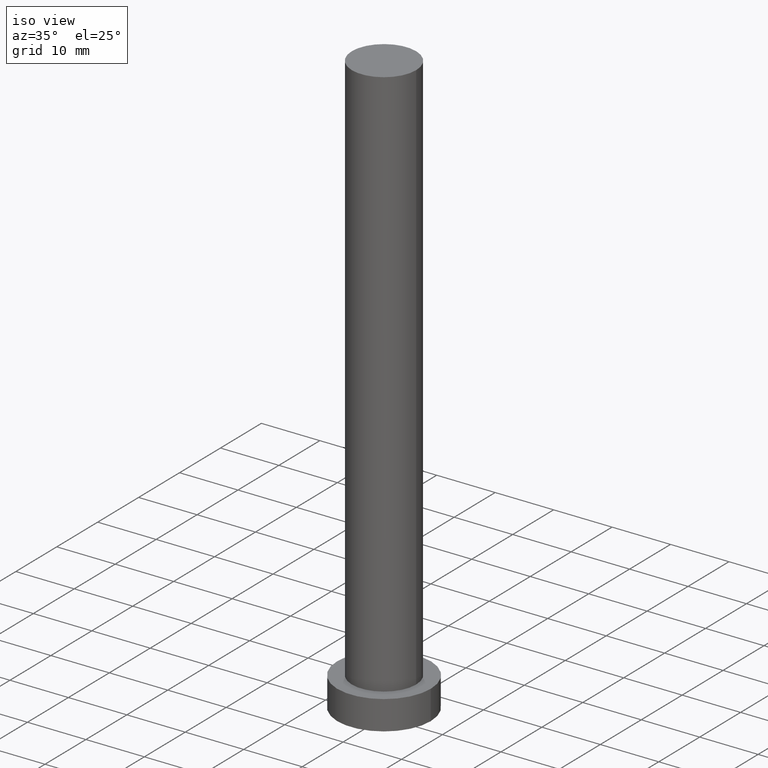
[diagram: clean part render]
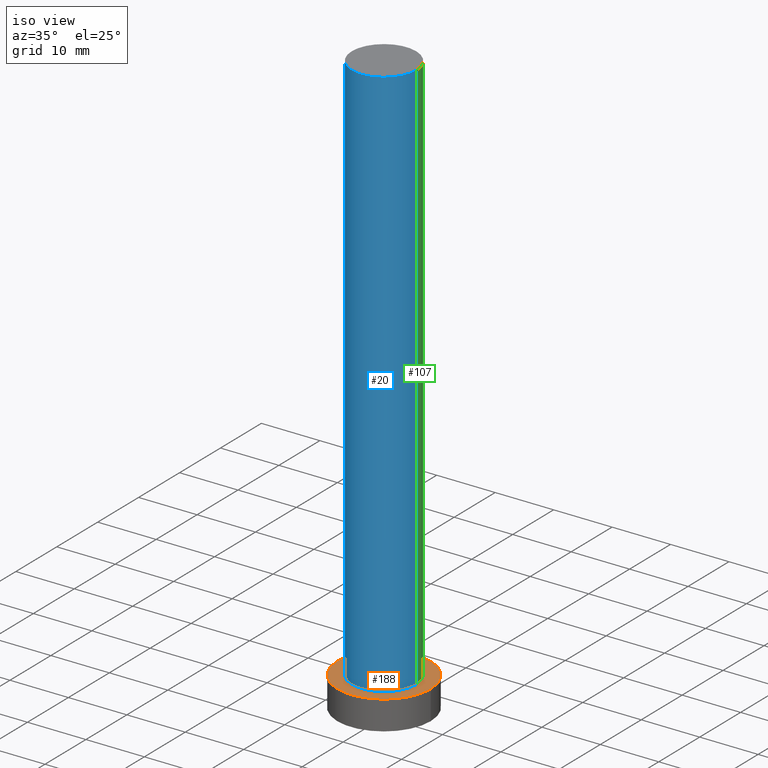
[diagram: same view with three faces highlighted in distinct colors, each labeled with its STEP entity id]
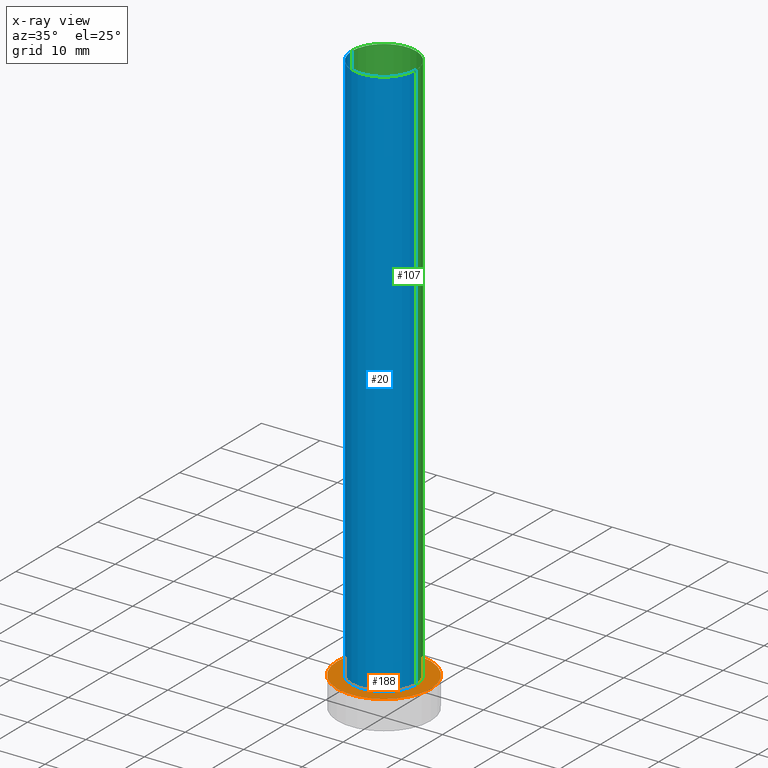
[diagram: x-ray of the same camera — body ghosted, the three highlighted faces saturated]
A machine part, iso view with three faces highlighted in distinct colors.
The next image is the same camera in x-ray (body ghosted, the three faces saturated) — at least one of them is partly hidden behind the body in this view.
Their STEP definitions:

[orange] entity #188 — the highlighted planar face has unit normal (0, 0, 1).
#3 = AXIS2_PLACEMENT_3D ( 'NONE', #136, #37, #176 ) ;
#9 = CIRCLE ( 'NONE', #99, 5.500000000000000000 ) ;
#14 = CARTESIAN_POINT ( 'NONE',  ( -8.000000000000000000, 0.000000000000000000, 5.000000000000000000 ) ) ;
#22 = AXIS2_PLACEMENT_3D ( 'NONE', #217, #32, #120 ) ;
#23 = EDGE_CURVE ( 'NONE', #61, #88, #68, .T. ) ;
#32 = DIRECTION ( 'NONE',  ( 0.000000000000000000, 0.000000000000000000, 1.000000000000000000 ) ) ;
#37 = DIRECTION ( 'NONE',  ( 0.000000000000000000, 0.000000000000000000, 1.000000000000000000 ) ) ;
#41 = CARTESIAN_POINT ( 'NONE',  ( -5.500000000000000000, 0.000000000000000000, 5.000000000000000000 ) ) ;
#46 = DIRECTION ( 'NONE',  ( 1.000000000000000000, 0.000000000000000000, 0.000000000000000000 ) ) ;
#61 = VERTEX_POINT ( 'NONE', #14 ) ;
#65 = DIRECTION ( 'NONE',  ( 1.000000000000000000, 0.000000000000000000, 0.000000000000000000 ) ) ;
#67 = DIRECTION ( 'NONE',  ( 0.000000000000000000, 0.000000000000000000, 1.000000000000000000 ) ) ;
#68 = CIRCLE ( 'NONE', #22, 8.000000000000000000 ) ;
#77 = DIRECTION ( 'NONE',  ( 0.000000000000000000, 0.000000000000000000, 1.000000000000000000 ) ) ;
#83 = CIRCLE ( 'NONE', #156, 5.500000000000000000 ) ;
#86 = ORIENTED_EDGE ( 'NONE', *, *, #139, .T. ) ;
#88 = VERTEX_POINT ( 'NONE', #221 ) ;
#99 = AXIS2_PLACEMENT_3D ( 'NONE', #105, #202, #46 ) ;
#105 = CARTESIAN_POINT ( 'NONE',  ( 0.000000000000000000, 0.000000000000000000, 5.000000000000000000 ) ) ;
#109 = CIRCLE ( 'NONE', #174, 8.000000000000000000 ) ;
#120 = DIRECTION ( 'NONE',  ( 1.000000000000000000, 0.000000000000000000, 0.000000000000000000 ) ) ;
#126 = PLANE ( 'NONE',  #3 ) ;
#129 = VERTEX_POINT ( 'NONE', #199 ) ;
#133 = EDGE_LOOP ( 'NONE', ( #167, #151 ) ) ;
#136 = CARTESIAN_POINT ( 'NONE',  ( 0.000000000000000000, 0.000000000000000000, 5.000000000000000000 ) ) ;
#139 = EDGE_CURVE ( 'NONE', #88, #61, #109, .T. ) ;
#140 = FACE_OUTER_BOUND ( 'NONE', #158, .T. ) ;
#150 = ORIENTED_EDGE ( 'NONE', *, *, #23, .T. ) ;
#151 = ORIENTED_EDGE ( 'NONE', *, *, #195, .F. ) ;
#156 = AXIS2_PLACEMENT_3D ( 'NONE', #254, #77, #165 ) ;
#158 = EDGE_LOOP ( 'NONE', ( #150, #86 ) ) ;
#165 = DIRECTION ( 'NONE',  ( 1.000000000000000000, 0.000000000000000000, 0.000000000000000000 ) ) ;
#167 = ORIENTED_EDGE ( 'NONE', *, *, #234, .F. ) ;
#174 = AXIS2_PLACEMENT_3D ( 'NONE', #200, #67, #65 ) ;
#176 = DIRECTION ( 'NONE',  ( 1.000000000000000000, 0.000000000000000000, -0.000000000000000000 ) ) ;
#188 = ADVANCED_FACE ( 'NONE', ( #225, #140 ), #126, .T. ) ;
#195 = EDGE_CURVE ( 'NONE', #129, #201, #83, .T. ) ;
#199 = CARTESIAN_POINT ( 'NONE',  ( 5.500000000000000000, 6.735557395310442023E-16, 5.000000000000000000 ) ) ;
#200 = CARTESIAN_POINT ( 'NONE',  ( 0.000000000000000000, 0.000000000000000000, 5.000000000000000000 ) ) ;
#201 = VERTEX_POINT ( 'NONE', #41 ) ;
#202 = DIRECTION ( 'NONE',  ( 0.000000000000000000, 0.000000000000000000, 1.000000000000000000 ) ) ;
#217 = CARTESIAN_POINT ( 'NONE',  ( 0.000000000000000000, 0.000000000000000000, 5.000000000000000000 ) ) ;
#221 = CARTESIAN_POINT ( 'NONE',  ( 8.000000000000000000, 9.797174393178825657E-16, 5.000000000000000000 ) ) ;
#225 = FACE_BOUND ( 'NONE', #133, .T. ) ;
#234 = EDGE_CURVE ( 'NONE', #201, #129, #9, .T. ) ;
#254 = CARTESIAN_POINT ( 'NONE',  ( 0.000000000000000000, 0.000000000000000000, 5.000000000000000000 ) ) ;

[blue] entity #20 — the highlighted cylindrical surface (partial cylindrical patch) has radius 5.5 mm, axis along (-0, -0, -1).
#5 = EDGE_LOOP ( 'NONE', ( #209, #187, #183, #7 ) ) ;
#7 = ORIENTED_EDGE ( 'NONE', *, *, #234, .T. ) ;
#9 = CIRCLE ( 'NONE', #99, 5.500000000000000000 ) ;
#17 = DIRECTION ( 'NONE',  ( -0.000000000000000000, -0.000000000000000000, -1.000000000000000000 ) ) ;
#18 = DIRECTION ( 'NONE',  ( 0.000000000000000000, 0.000000000000000000, 1.000000000000000000 ) ) ;
#20 = ADVANCED_FACE ( 'NONE', ( #116 ), #162, .T. ) ;
#41 = CARTESIAN_POINT ( 'NONE',  ( -5.500000000000000000, 0.000000000000000000, 5.000000000000000000 ) ) ;
#46 = DIRECTION ( 'NONE',  ( 1.000000000000000000, 0.000000000000000000, 0.000000000000000000 ) ) ;
#53 = DIRECTION ( 'NONE',  ( -1.000000000000000000, 0.000000000000000000, 0.000000000000000000 ) ) ;
#81 = DIRECTION ( 'NONE',  ( -0.000000000000000000, -0.000000000000000000, -1.000000000000000000 ) ) ;
#94 = DIRECTION ( 'NONE',  ( 1.000000000000000000, 0.000000000000000000, 0.000000000000000000 ) ) ;
#99 = AXIS2_PLACEMENT_3D ( 'NONE', #105, #202, #46 ) ;
#104 = VECTOR ( 'NONE', #81, 1000.000000000000000 ) ;
#105 = CARTESIAN_POINT ( 'NONE',  ( 0.000000000000000000, 0.000000000000000000, 5.000000000000000000 ) ) ;
#112 = AXIS2_PLACEMENT_3D ( 'NONE', #241, #18, #94 ) ;
#116 = FACE_OUTER_BOUND ( 'NONE', #5, .T. ) ;
#118 = CARTESIAN_POINT ( 'NONE',  ( 0.000000000000000000, 0.000000000000000000, 100.0000000000000000 ) ) ;
#129 = VERTEX_POINT ( 'NONE', #199 ) ;
#131 = CARTESIAN_POINT ( 'NONE',  ( 5.500000000000000000, 6.735557395310442023E-16, 100.0000000000000000 ) ) ;
#144 = VERTEX_POINT ( 'NONE', #147 ) ;
#145 = VERTEX_POINT ( 'NONE', #230 ) ;
#146 = DIRECTION ( 'NONE',  ( -0.000000000000000000, -0.000000000000000000, -1.000000000000000000 ) ) ;
#147 = CARTESIAN_POINT ( 'NONE',  ( -5.500000000000000000, 0.000000000000000000, 100.0000000000000000 ) ) ;
#162 = CYLINDRICAL_SURFACE ( 'NONE', #191, 5.500000000000000000 ) ;
#183 = ORIENTED_EDGE ( 'NONE', *, *, #247, .T. ) ;
#185 = LINE ( 'NONE', #131, #104 ) ;
#187 = ORIENTED_EDGE ( 'NONE', *, *, #189, .F. ) ;
#189 = EDGE_CURVE ( 'NONE', #144, #145, #210, .T. ) ;
#191 = AXIS2_PLACEMENT_3D ( 'NONE', #118, #17, #53 ) ;
#199 = CARTESIAN_POINT ( 'NONE',  ( 5.500000000000000000, 6.735557395310442023E-16, 5.000000000000000000 ) ) ;
#201 = VERTEX_POINT ( 'NONE', #41 ) ;
#202 = DIRECTION ( 'NONE',  ( 0.000000000000000000, 0.000000000000000000, 1.000000000000000000 ) ) ;
#204 = LINE ( 'NONE', #242, #248 ) ;
#209 = ORIENTED_EDGE ( 'NONE', *, *, #237, .F. ) ;
#210 = CIRCLE ( 'NONE', #112, 5.500000000000000000 ) ;
#230 = CARTESIAN_POINT ( 'NONE',  ( 5.500000000000000000, 6.735557395310442023E-16, 100.0000000000000000 ) ) ;
#234 = EDGE_CURVE ( 'NONE', #201, #129, #9, .T. ) ;
#237 = EDGE_CURVE ( 'NONE', #145, #129, #185, .T. ) ;
#241 = CARTESIAN_POINT ( 'NONE',  ( 0.000000000000000000, 0.000000000000000000, 100.0000000000000000 ) ) ;
#242 = CARTESIAN_POINT ( 'NONE',  ( -5.500000000000000000, 0.000000000000000000, 100.0000000000000000 ) ) ;
#247 = EDGE_CURVE ( 'NONE', #144, #201, #204, .T. ) ;
#248 = VECTOR ( 'NONE', #146, 1000.000000000000000 ) ;

[green] entity #107 — the highlighted cylindrical surface (partial cylindrical patch) has radius 5.5 mm, axis along (-0, -0, -1).
#4 = ORIENTED_EDGE ( 'NONE', *, *, #247, .F. ) ;
#31 = CARTESIAN_POINT ( 'NONE',  ( 0.000000000000000000, 0.000000000000000000, 100.0000000000000000 ) ) ;
#34 = DIRECTION ( 'NONE',  ( -1.000000000000000000, 0.000000000000000000, 0.000000000000000000 ) ) ;
#36 = CARTESIAN_POINT ( 'NONE',  ( 0.000000000000000000, 0.000000000000000000, 100.0000000000000000 ) ) ;
#41 = CARTESIAN_POINT ( 'NONE',  ( -5.500000000000000000, 0.000000000000000000, 5.000000000000000000 ) ) ;
#45 = FACE_OUTER_BOUND ( 'NONE', #110, .T. ) ;
#54 = EDGE_CURVE ( 'NONE', #145, #144, #78, .T. ) ;
#55 = DIRECTION ( 'NONE',  ( -0.000000000000000000, -0.000000000000000000, -1.000000000000000000 ) ) ;
#62 = ORIENTED_EDGE ( 'NONE', *, *, #237, .T. ) ;
#77 = DIRECTION ( 'NONE',  ( 0.000000000000000000, 0.000000000000000000, 1.000000000000000000 ) ) ;
#78 = CIRCLE ( 'NONE', #229, 5.500000000000000000 ) ;
#81 = DIRECTION ( 'NONE',  ( -0.000000000000000000, -0.000000000000000000, -1.000000000000000000 ) ) ;
#83 = CIRCLE ( 'NONE', #156, 5.500000000000000000 ) ;
#104 = VECTOR ( 'NONE', #81, 1000.000000000000000 ) ;
#107 = ADVANCED_FACE ( 'NONE', ( #45 ), #177, .T. ) ;
#110 = EDGE_LOOP ( 'NONE', ( #168, #62, #115, #4 ) ) ;
#115 = ORIENTED_EDGE ( 'NONE', *, *, #195, .T. ) ;
#122 = DIRECTION ( 'NONE',  ( 0.000000000000000000, 0.000000000000000000, 1.000000000000000000 ) ) ;
#124 = AXIS2_PLACEMENT_3D ( 'NONE', #31, #55, #34 ) ;
#129 = VERTEX_POINT ( 'NONE', #199 ) ;
#131 = CARTESIAN_POINT ( 'NONE',  ( 5.500000000000000000, 6.735557395310442023E-16, 100.0000000000000000 ) ) ;
#144 = VERTEX_POINT ( 'NONE', #147 ) ;
#145 = VERTEX_POINT ( 'NONE', #230 ) ;
#146 = DIRECTION ( 'NONE',  ( -0.000000000000000000, -0.000000000000000000, -1.000000000000000000 ) ) ;
#147 = CARTESIAN_POINT ( 'NONE',  ( -5.500000000000000000, 0.000000000000000000, 100.0000000000000000 ) ) ;
#156 = AXIS2_PLACEMENT_3D ( 'NONE', #254, #77, #165 ) ;
#165 = DIRECTION ( 'NONE',  ( 1.000000000000000000, 0.000000000000000000, 0.000000000000000000 ) ) ;
#168 = ORIENTED_EDGE ( 'NONE', *, *, #54, .F. ) ;
#177 = CYLINDRICAL_SURFACE ( 'NONE', #124, 5.500000000000000000 ) ;
#185 = LINE ( 'NONE', #131, #104 ) ;
#195 = EDGE_CURVE ( 'NONE', #129, #201, #83, .T. ) ;
#197 = DIRECTION ( 'NONE',  ( 1.000000000000000000, 0.000000000000000000, 0.000000000000000000 ) ) ;
#199 = CARTESIAN_POINT ( 'NONE',  ( 5.500000000000000000, 6.735557395310442023E-16, 5.000000000000000000 ) ) ;
#201 = VERTEX_POINT ( 'NONE', #41 ) ;
#204 = LINE ( 'NONE', #242, #248 ) ;
#229 = AXIS2_PLACEMENT_3D ( 'NONE', #36, #122, #197 ) ;
#230 = CARTESIAN_POINT ( 'NONE',  ( 5.500000000000000000, 6.735557395310442023E-16, 100.0000000000000000 ) ) ;
#237 = EDGE_CURVE ( 'NONE', #145, #129, #185, .T. ) ;
#242 = CARTESIAN_POINT ( 'NONE',  ( -5.500000000000000000, 0.000000000000000000, 100.0000000000000000 ) ) ;
#247 = EDGE_CURVE ( 'NONE', #144, #201, #204, .T. ) ;
#248 = VECTOR ( 'NONE', #146, 1000.000000000000000 ) ;
#254 = CARTESIAN_POINT ( 'NONE',  ( 0.000000000000000000, 0.000000000000000000, 5.000000000000000000 ) ) ;